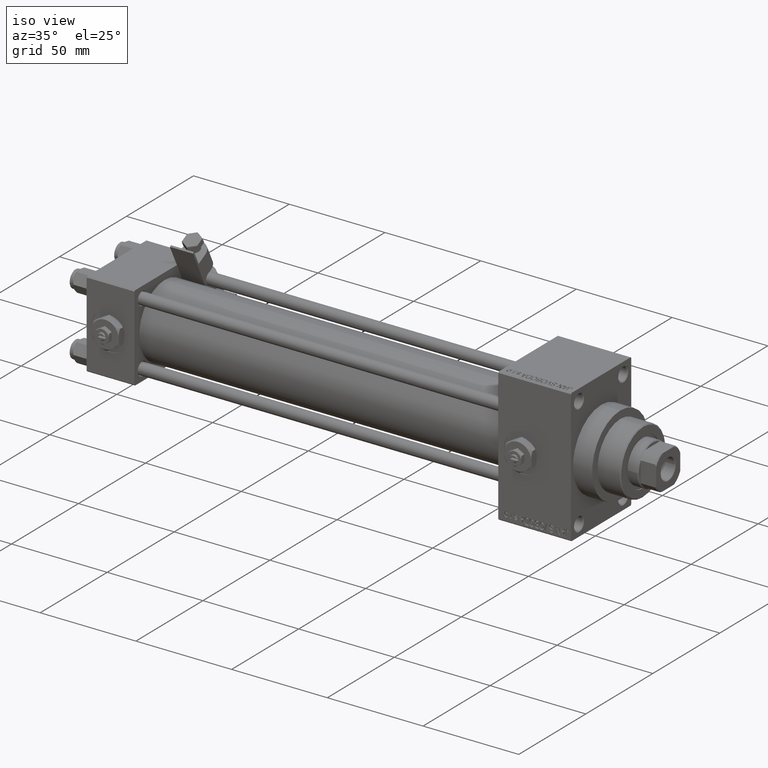
[diagram: clean part render]
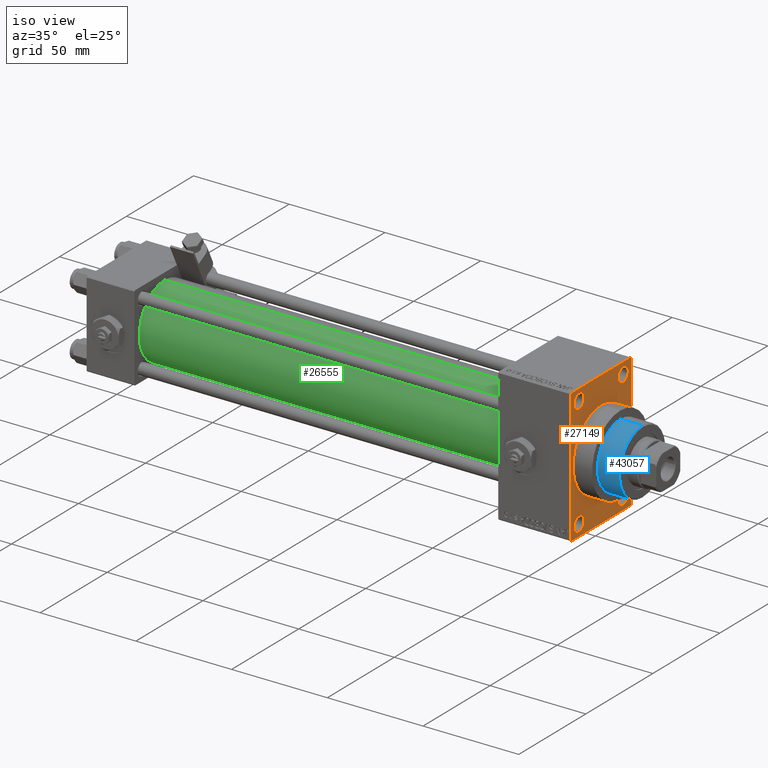
[diagram: same view with three faces highlighted in distinct colors, each labeled with its STEP entity id]
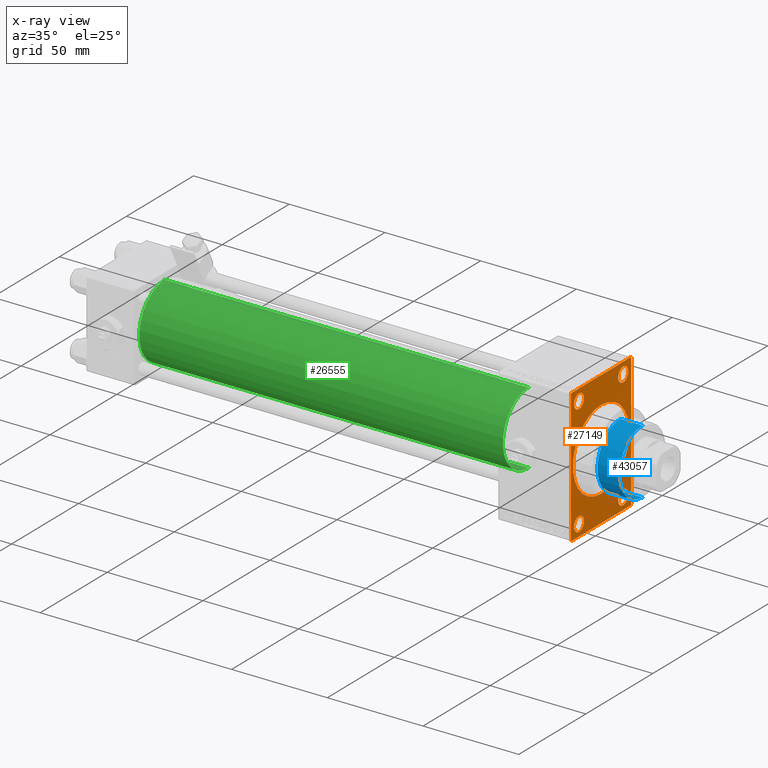
[diagram: x-ray of the same camera — body ghosted, the three highlighted faces saturated]
A machine part, iso view with three faces highlighted in distinct colors.
The next image is the same camera in x-ray (body ghosted, the three faces saturated) — at least one of them is partly hidden behind the body in this view.
Their STEP definitions:

[orange] entity #27149 — the highlighted planar face has unit normal (-1, 0, 0).
#645 = ORIENTED_EDGE ( 'NONE', *, *, #44953, .T. ) ;
#787 = VERTEX_POINT ( 'NONE', #22600 ) ;
#1042 = VERTEX_POINT ( 'NONE', #1603 ) ;
#1364 = AXIS2_PLACEMENT_3D ( 'NONE', #10021, #47788, #40171 ) ;
#1542 = CARTESIAN_POINT ( 'NONE',  ( 253.0000000000000000, 16.50000000000000000, 25.24999999999977973 ) ) ;
#1603 = CARTESIAN_POINT ( 'NONE',  ( 253.0000000000000000, -16.50000000000000000, 25.24999999999978684 ) ) ;
#1740 = VECTOR ( 'NONE', #18904, 1000.000000000000000 ) ;
#1948 = EDGE_LOOP ( 'NONE', ( #34390, #645 ) ) ;
#2162 = DIRECTION ( 'NONE',  ( -1.000000000000000000, -0.000000000000000000, -0.000000000000000000 ) ) ;
#2186 = CIRCLE ( 'NONE', #30500, 3.750000000000222045 ) ;
#2532 = DIRECTION ( 'NONE',  ( 0.000000000000000000, 0.7071067811865474617, -0.7071067811865474617 ) ) ;
#2940 = DIRECTION ( 'NONE',  ( 0.000000000000000000, 0.000000000000000000, -1.000000000000000000 ) ) ;
#3017 = ORIENTED_EDGE ( 'NONE', *, *, #25691, .T. ) ;
#3074 = DIRECTION ( 'NONE',  ( 1.000000000000000000, 0.000000000000000000, 0.000000000000000000 ) ) ;
#3253 = ORIENTED_EDGE ( 'NONE', *, *, #29309, .T. ) ;
#3453 = CARTESIAN_POINT ( 'NONE',  ( 253.0000000000000000, 22.49999999999999645, 35.00000000000000000 ) ) ;
#3502 = EDGE_LOOP ( 'NONE', ( #31619, #44229, #40541, #3017, #4941, #47282, #17095, #20751 ) ) ;
#3698 = VERTEX_POINT ( 'NONE', #41535 ) ;
#4941 = ORIENTED_EDGE ( 'NONE', *, *, #37837, .F. ) ;
#5272 = DIRECTION ( 'NONE',  ( 0.000000000000000000, 0.000000000000000000, 1.000000000000000000 ) ) ;
#5916 = CARTESIAN_POINT ( 'NONE',  ( 253.0000000000000000, 2.571758278209441661E-15, -21.00000000000000000 ) ) ;
#6010 = ORIENTED_EDGE ( 'NONE', *, *, #48205, .T. ) ;
#6021 = CARTESIAN_POINT ( 'NONE',  ( 253.0000000000000000, 16.50000000000000000, -28.99999999999999289 ) ) ;
#6066 = VERTEX_POINT ( 'NONE', #7639 ) ;
#6514 = CARTESIAN_POINT ( 'NONE',  ( 253.0000000000000000, 22.49999999999999645, 34.50000000000000000 ) ) ;
#7639 = CARTESIAN_POINT ( 'NONE',  ( 253.0000000000000000, -22.50000000000000355, 34.50000000000000000 ) ) ;
#8114 = EDGE_CURVE ( 'NONE', #32063, #48885, #41681, .T. ) ;
#8221 = ORIENTED_EDGE ( 'NONE', *, *, #14697, .F. ) ;
#8344 = ORIENTED_EDGE ( 'NONE', *, *, #12684, .T. ) ;
#9104 = DIRECTION ( 'NONE',  ( 0.000000000000000000, 0.000000000000000000, 1.000000000000000000 ) ) ;
#9502 = VECTOR ( 'NONE', #11646, 1000.000000000000000 ) ;
#9588 = LINE ( 'NONE', #10088, #25989 ) ;
#9602 = DIRECTION ( 'NONE',  ( -1.000000000000000000, -0.000000000000000000, -0.000000000000000000 ) ) ;
#9880 = DIRECTION ( 'NONE',  ( -1.000000000000000000, 0.000000000000000000, -0.000000000000000000 ) ) ;
#10021 = CARTESIAN_POINT ( 'NONE',  ( 253.0000000000000000, 16.50000000000000000, -28.99999999999999289 ) ) ;
#10088 = CARTESIAN_POINT ( 'NONE',  ( 253.0000000000000000, 22.49999999999999645, -34.50000000000000000 ) ) ;
#10323 = DIRECTION ( 'NONE',  ( -1.000000000000000000, -0.000000000000000000, -0.000000000000000000 ) ) ;
#10900 = EDGE_CURVE ( 'NONE', #32162, #42918, #43165, .T. ) ;
#11106 = AXIS2_PLACEMENT_3D ( 'NONE', #38206, #30840, #42516 ) ;
#11604 = DIRECTION ( 'NONE',  ( -1.000000000000000000, -0.000000000000000000, -0.000000000000000000 ) ) ;
#11646 = DIRECTION ( 'NONE',  ( 0.000000000000000000, -1.000000000000000000, 0.000000000000000000 ) ) ;
#11964 = CARTESIAN_POINT ( 'NONE',  ( 253.0000000000000000, 0.000000000000000000, 0.000000000000000000 ) ) ;
#12414 = CARTESIAN_POINT ( 'NONE',  ( 253.0000000000000000, -16.50000000000000000, -32.75000000000022027 ) ) ;
#12684 = EDGE_CURVE ( 'NONE', #3698, #27086, #23998, .T. ) ;
#12990 = CARTESIAN_POINT ( 'NONE',  ( 253.0000000000000000, -22.50000000000000355, -34.50000000000000000 ) ) ;
#12992 = DIRECTION ( 'NONE',  ( 0.000000000000000000, -0.7071067811865474617, 0.7071067811865474617 ) ) ;
#14697 = EDGE_CURVE ( 'NONE', #48885, #32063, #22436, .T. ) ;
#14987 = CARTESIAN_POINT ( 'NONE',  ( 253.0000000000000000, -16.50000000000000000, 32.75000000000022737 ) ) ;
#15688 = CARTESIAN_POINT ( 'NONE',  ( 253.0000000000000000, 0.000000000000000000, 21.00000000000000000 ) ) ;
#15898 = CARTESIAN_POINT ( 'NONE',  ( 253.0000000000000000, -16.50000000000000000, -28.99999999999999289 ) ) ;
#16164 = DIRECTION ( 'NONE',  ( -1.000000000000000000, -0.000000000000000000, -0.000000000000000000 ) ) ;
#16500 = VERTEX_POINT ( 'NONE', #12414 ) ;
#16832 = EDGE_CURVE ( 'NONE', #30996, #1042, #32950, .T. ) ;
#16850 = EDGE_CURVE ( 'NONE', #16500, #34419, #34576, .T. ) ;
#17095 = ORIENTED_EDGE ( 'NONE', *, *, #43804, .T. ) ;
#17359 = LINE ( 'NONE', #35878, #38124 ) ;
#18150 = LINE ( 'NONE', #25254, #34895 ) ;
#18904 = DIRECTION ( 'NONE',  ( 0.000000000000000000, -1.000000000000000000, 0.000000000000000000 ) ) ;
#19855 = VERTEX_POINT ( 'NONE', #1542 ) ;
#20394 = CIRCLE ( 'NONE', #45529, 3.750000000000222045 ) ;
#20751 = ORIENTED_EDGE ( 'NONE', *, *, #29058, .T. ) ;
#21252 = FACE_BOUND ( 'NONE', #36972, .T. ) ;
#21459 = DIRECTION ( 'NONE',  ( -0.000000000000000000, 0.7071067811865279218, 0.7071067811865671127 ) ) ;
#21772 = CARTESIAN_POINT ( 'NONE',  ( 253.0000000000000000, -22.00000000000000355, -35.00000000000000000 ) ) ;
#22075 = DIRECTION ( 'NONE',  ( 0.000000000000000000, 0.000000000000000000, -1.000000000000000000 ) ) ;
#22436 = CIRCLE ( 'NONE', #32193, 21.00000000000000000 ) ;
#22600 = CARTESIAN_POINT ( 'NONE',  ( 253.0000000000000000, -22.00000000000001776, 35.00000000000000000 ) ) ;
#22696 = LINE ( 'NONE', #3453, #1740 ) ;
#23203 = AXIS2_PLACEMENT_3D ( 'NONE', #15898, #11604, #42771 ) ;
#23736 = DIRECTION ( 'NONE',  ( 0.000000000000000000, 0.000000000000000000, 1.000000000000000000 ) ) ;
#23998 = CIRCLE ( 'NONE', #1364, 3.750000000000222045 ) ;
#24357 = CARTESIAN_POINT ( 'NONE',  ( 253.0000000000000000, -16.50000000000000000, -25.24999999999976907 ) ) ;
#24722 = EDGE_CURVE ( 'NONE', #19855, #49529, #42977, .T. ) ;
#25085 = LINE ( 'NONE', #34699, #39414 ) ;
#25254 = CARTESIAN_POINT ( 'NONE',  ( 253.0000000000000000, 22.49999999999999645, 35.00000000000000000 ) ) ;
#25676 = CARTESIAN_POINT ( 'NONE',  ( 253.0000000000000000, 21.99999999999999645, 35.00000000000000000 ) ) ;
#25691 = EDGE_CURVE ( 'NONE', #40723, #38119, #9588, .T. ) ;
#25939 = EDGE_CURVE ( 'NONE', #6066, #38615, #17359, .T. ) ;
#25989 = VECTOR ( 'NONE', #21459, 1000.000000000000000 ) ;
#27031 = AXIS2_PLACEMENT_3D ( 'NONE', #28829, #9602, #9104 ) ;
#27086 = VERTEX_POINT ( 'NONE', #29954 ) ;
#27149 = ADVANCED_FACE ( 'NONE', ( #48397, #39783, #21252, #36730, #48140, #28607 ), #28859, .F. ) ;
#27898 = DIRECTION ( 'NONE',  ( 0.000000000000000000, 0.000000000000000000, -1.000000000000000000 ) ) ;
#27984 = VECTOR ( 'NONE', #12992, 1000.000000000000114 ) ;
#28607 = FACE_OUTER_BOUND ( 'NONE', #3502, .T. ) ;
#28681 = CIRCLE ( 'NONE', #47309, 3.750000000000225597 ) ;
#28829 = CARTESIAN_POINT ( 'NONE',  ( 253.0000000000000000, -16.50000000000000000, 29.00000000000000711 ) ) ;
#28859 = PLANE ( 'NONE',  #45507 ) ;
#29007 = CARTESIAN_POINT ( 'NONE',  ( 253.0000000000000000, -16.50000000000000000, -28.99999999999999289 ) ) ;
#29058 = EDGE_CURVE ( 'NONE', #787, #6066, #25085, .T. ) ;
#29079 = EDGE_CURVE ( 'NONE', #40723, #42612, #30885, .T. ) ;
#29309 = EDGE_CURVE ( 'NONE', #27086, #3698, #2186, .T. ) ;
#29311 = CARTESIAN_POINT ( 'NONE',  ( 253.0000000000000000, 16.50000000000000000, 29.00000000000000355 ) ) ;
#29440 = CARTESIAN_POINT ( 'NONE',  ( 253.0000000000000000, 0.000000000000000000, 0.000000000000000000 ) ) ;
#29954 = CARTESIAN_POINT ( 'NONE',  ( 253.0000000000000000, 16.50000000000000000, -32.75000000000022027 ) ) ;
#30500 = AXIS2_PLACEMENT_3D ( 'NONE', #6021, #44299, #5272 ) ;
#30840 = DIRECTION ( 'NONE',  ( -1.000000000000000000, -0.000000000000000000, -0.000000000000000000 ) ) ;
#30885 = LINE ( 'NONE', #46109, #9502 ) ;
#30996 = VERTEX_POINT ( 'NONE', #14987 ) ;
#31619 = ORIENTED_EDGE ( 'NONE', *, *, #25939, .T. ) ;
#32063 = VERTEX_POINT ( 'NONE', #15688 ) ;
#32162 = VERTEX_POINT ( 'NONE', #6514 ) ;
#32176 = CARTESIAN_POINT ( 'NONE',  ( 253.0000000000000000, 0.000000000000000000, 0.000000000000000000 ) ) ;
#32193 = AXIS2_PLACEMENT_3D ( 'NONE', #11964, #40057, #27898 ) ;
#32645 = ORIENTED_EDGE ( 'NONE', *, *, #8114, .F. ) ;
#32950 = CIRCLE ( 'NONE', #11106, 3.750000000000222045 ) ;
#33867 = DIRECTION ( 'NONE',  ( 0.000000000000000000, 0.000000000000000000, 1.000000000000000000 ) ) ;
#34306 = EDGE_LOOP ( 'NONE', ( #6010, #48930 ) ) ;
#34390 = ORIENTED_EDGE ( 'NONE', *, *, #16850, .T. ) ;
#34419 = VERTEX_POINT ( 'NONE', #24357 ) ;
#34576 = CIRCLE ( 'NONE', #23203, 3.750000000000222045 ) ;
#34699 = CARTESIAN_POINT ( 'NONE',  ( 253.0000000000000000, -22.50000000000000355, 34.50000000000000000 ) ) ;
#34895 = VECTOR ( 'NONE', #2940, 1000.000000000000000 ) ;
#35659 = AXIS2_PLACEMENT_3D ( 'NONE', #29311, #10323, #33867 ) ;
#35878 = CARTESIAN_POINT ( 'NONE',  ( 253.0000000000000000, -22.50000000000000355, 35.00000000000000000 ) ) ;
#36038 = AXIS2_PLACEMENT_3D ( 'NONE', #29440, #3074, #22075 ) ;
#36411 = CARTESIAN_POINT ( 'NONE',  ( 253.0000000000000000, 16.50000000000000000, 32.75000000000022737 ) ) ;
#36730 = FACE_BOUND ( 'NONE', #43561, .T. ) ;
#36972 = EDGE_LOOP ( 'NONE', ( #3253, #8344 ) ) ;
#37837 = EDGE_CURVE ( 'NONE', #32162, #38119, #18150, .T. ) ;
#38119 = VERTEX_POINT ( 'NONE', #39416 ) ;
#38124 = VECTOR ( 'NONE', #39928, 1000.000000000000000 ) ;
#38206 = CARTESIAN_POINT ( 'NONE',  ( 253.0000000000000000, -16.50000000000000000, 29.00000000000000711 ) ) ;
#38615 = VERTEX_POINT ( 'NONE', #12990 ) ;
#39187 = ORIENTED_EDGE ( 'NONE', *, *, #24722, .T. ) ;
#39414 = VECTOR ( 'NONE', #41559, 1000.000000000000000 ) ;
#39416 = CARTESIAN_POINT ( 'NONE',  ( 253.0000000000000000, 22.49999999999999645, -34.50000000000000000 ) ) ;
#39783 = FACE_BOUND ( 'NONE', #1948, .T. ) ;
#39928 = DIRECTION ( 'NONE',  ( 0.000000000000000000, 0.000000000000000000, -1.000000000000000000 ) ) ;
#40057 = DIRECTION ( 'NONE',  ( 1.000000000000000000, 0.000000000000000000, 0.000000000000000000 ) ) ;
#40171 = DIRECTION ( 'NONE',  ( 0.000000000000000000, 0.000000000000000000, 1.000000000000000000 ) ) ;
#40541 = ORIENTED_EDGE ( 'NONE', *, *, #29079, .F. ) ;
#40723 = VERTEX_POINT ( 'NONE', #41962 ) ;
#41063 = LINE ( 'NONE', #21772, #48863 ) ;
#41535 = CARTESIAN_POINT ( 'NONE',  ( 253.0000000000000000, 16.50000000000000000, -25.24999999999976907 ) ) ;
#41559 = DIRECTION ( 'NONE',  ( -0.000000000000000000, -0.7071067811865279218, -0.7071067811865671127 ) ) ;
#41681 = CIRCLE ( 'NONE', #36038, 21.00000000000000000 ) ;
#41962 = CARTESIAN_POINT ( 'NONE',  ( 253.0000000000000000, 22.00000000000002132, -35.00000000000000000 ) ) ;
#42418 = CIRCLE ( 'NONE', #27031, 3.750000000000222045 ) ;
#42516 = DIRECTION ( 'NONE',  ( 0.000000000000000000, 0.000000000000000000, 1.000000000000000000 ) ) ;
#42612 = VERTEX_POINT ( 'NONE', #46336 ) ;
#42771 = DIRECTION ( 'NONE',  ( 0.000000000000000000, 0.000000000000000000, 1.000000000000000000 ) ) ;
#42918 = VERTEX_POINT ( 'NONE', #25676 ) ;
#42968 = ORIENTED_EDGE ( 'NONE', *, *, #49465, .T. ) ;
#42977 = CIRCLE ( 'NONE', #35659, 3.750000000000225597 ) ;
#43165 = LINE ( 'NONE', #47713, #27984 ) ;
#43561 = EDGE_LOOP ( 'NONE', ( #39187, #42968 ) ) ;
#43777 = CARTESIAN_POINT ( 'NONE',  ( 253.0000000000000000, 16.50000000000000000, 29.00000000000000355 ) ) ;
#43804 = EDGE_CURVE ( 'NONE', #42918, #787, #22696, .T. ) ;
#44229 = ORIENTED_EDGE ( 'NONE', *, *, #47075, .T. ) ;
#44299 = DIRECTION ( 'NONE',  ( -1.000000000000000000, -0.000000000000000000, -0.000000000000000000 ) ) ;
#44953 = EDGE_CURVE ( 'NONE', #34419, #16500, #20394, .T. ) ;
#45507 = AXIS2_PLACEMENT_3D ( 'NONE', #32176, #9880, #47894 ) ;
#45529 = AXIS2_PLACEMENT_3D ( 'NONE', #29007, #2162, #48294 ) ;
#46109 = CARTESIAN_POINT ( 'NONE',  ( 253.0000000000000000, 22.49999999999999645, -35.00000000000000000 ) ) ;
#46336 = CARTESIAN_POINT ( 'NONE',  ( 253.0000000000000000, -21.99999999999998934, -35.00000000000000000 ) ) ;
#47075 = EDGE_CURVE ( 'NONE', #38615, #42612, #41063, .T. ) ;
#47282 = ORIENTED_EDGE ( 'NONE', *, *, #10900, .T. ) ;
#47309 = AXIS2_PLACEMENT_3D ( 'NONE', #43777, #16164, #23736 ) ;
#47713 = CARTESIAN_POINT ( 'NONE',  ( 253.0000000000000000, 21.99999999999999645, 35.00000000000000000 ) ) ;
#47788 = DIRECTION ( 'NONE',  ( -1.000000000000000000, -0.000000000000000000, -0.000000000000000000 ) ) ;
#47894 = DIRECTION ( 'NONE',  ( -0.000000000000000000, 0.000000000000000000, 1.000000000000000000 ) ) ;
#48140 = FACE_BOUND ( 'NONE', #49362, .T. ) ;
#48205 = EDGE_CURVE ( 'NONE', #1042, #30996, #42418, .T. ) ;
#48294 = DIRECTION ( 'NONE',  ( 0.000000000000000000, 0.000000000000000000, 1.000000000000000000 ) ) ;
#48397 = FACE_BOUND ( 'NONE', #34306, .T. ) ;
#48863 = VECTOR ( 'NONE', #2532, 1000.000000000000114 ) ;
#48885 = VERTEX_POINT ( 'NONE', #5916 ) ;
#48930 = ORIENTED_EDGE ( 'NONE', *, *, #16832, .T. ) ;
#49362 = EDGE_LOOP ( 'NONE', ( #32645, #8221 ) ) ;
#49465 = EDGE_CURVE ( 'NONE', #49529, #19855, #28681, .T. ) ;
#49529 = VERTEX_POINT ( 'NONE', #36411 ) ;

[blue] entity #43057 — the highlighted cylindrical surface (partial cylindrical patch) has radius 17 mm, axis along (-1, 0, 0).
#1317 = CARTESIAN_POINT ( 'NONE',  ( 0.000000000000000000, 0.000000000000000000, 55.26000000000000512 ) ) ;
#2646 = CARTESIAN_POINT ( 'NONE',  ( -17.00000000000000000, 0.000000000000000000, 55.26000000000000512 ) ) ;
#3537 = CIRCLE ( 'NONE', #16497, 17.00000000000000000 ) ;
#3631 = DIRECTION ( 'NONE',  ( 1.000000000000000000, 0.000000000000000000, 0.000000000000000000 ) ) ;
#5076 = ORIENTED_EDGE ( 'NONE', *, *, #13583, .F. ) ;
#5123 = DIRECTION ( 'NONE',  ( -0.000000000000000000, -0.000000000000000000, -1.000000000000000000 ) ) ;
#5233 = EDGE_CURVE ( 'NONE', #38823, #19791, #3537, .T. ) ;
#6503 = CARTESIAN_POINT ( 'NONE',  ( 17.00000000000000000, 2.081899558550500280E-15, 43.25999999999999801 ) ) ;
#8949 = ORIENTED_EDGE ( 'NONE', *, *, #39168, .T. ) ;
#9435 = FACE_OUTER_BOUND ( 'NONE', #44177, .T. ) ;
#10559 = DIRECTION ( 'NONE',  ( 1.000000000000000000, 0.000000000000000000, 0.000000000000000000 ) ) ;
#11437 = VERTEX_POINT ( 'NONE', #49889 ) ;
#13583 = EDGE_CURVE ( 'NONE', #11437, #19791, #29751, .T. ) ;
#13912 = AXIS2_PLACEMENT_3D ( 'NONE', #1317, #5123, #40342 ) ;
#16497 = AXIS2_PLACEMENT_3D ( 'NONE', #41216, #40972, #10559 ) ;
#18702 = CIRCLE ( 'NONE', #37348, 17.00000000000000000 ) ;
#19791 = VERTEX_POINT ( 'NONE', #24094 ) ;
#22567 = LINE ( 'NONE', #37806, #22740 ) ;
#22740 = VECTOR ( 'NONE', #30183, 1000.000000000000000 ) ;
#22877 = CARTESIAN_POINT ( 'NONE',  ( 0.000000000000000000, 0.000000000000000000, 54.76000000000001222 ) ) ;
#24094 = CARTESIAN_POINT ( 'NONE',  ( -17.00000000000000000, 0.000000000000000000, 43.25999999999999801 ) ) ;
#24587 = ORIENTED_EDGE ( 'NONE', *, *, #39499, .T. ) ;
#26008 = CARTESIAN_POINT ( 'NONE',  ( 17.00000000000000000, 2.081899558550500280E-15, 54.76000000000001222 ) ) ;
#27923 = CYLINDRICAL_SURFACE ( 'NONE', #13912, 17.00000000000000000 ) ;
#29751 = LINE ( 'NONE', #2646, #47545 ) ;
#30183 = DIRECTION ( 'NONE',  ( -0.000000000000000000, -0.000000000000000000, -1.000000000000000000 ) ) ;
#30747 = DIRECTION ( 'NONE',  ( 0.000000000000000000, 0.000000000000000000, -1.000000000000000000 ) ) ;
#32819 = DIRECTION ( 'NONE',  ( -0.000000000000000000, -0.000000000000000000, -1.000000000000000000 ) ) ;
#37348 = AXIS2_PLACEMENT_3D ( 'NONE', #22877, #30747, #3631 ) ;
#37806 = CARTESIAN_POINT ( 'NONE',  ( 17.00000000000000000, 2.081899558550500280E-15, 55.26000000000000512 ) ) ;
#37884 = VERTEX_POINT ( 'NONE', #26008 ) ;
#38823 = VERTEX_POINT ( 'NONE', #6503 ) ;
#39168 = EDGE_CURVE ( 'NONE', #11437, #37884, #18702, .T. ) ;
#39499 = EDGE_CURVE ( 'NONE', #37884, #38823, #22567, .T. ) ;
#40342 = DIRECTION ( 'NONE',  ( -1.000000000000000000, 0.000000000000000000, 0.000000000000000000 ) ) ;
#40608 = ORIENTED_EDGE ( 'NONE', *, *, #5233, .T. ) ;
#40972 = DIRECTION ( 'NONE',  ( 0.000000000000000000, 0.000000000000000000, 1.000000000000000000 ) ) ;
#41216 = CARTESIAN_POINT ( 'NONE',  ( 0.000000000000000000, 0.000000000000000000, 43.25999999999999801 ) ) ;
#43057 = ADVANCED_FACE ( 'NONE', ( #9435 ), #27923, .T. ) ;
#44177 = EDGE_LOOP ( 'NONE', ( #8949, #24587, #40608, #5076 ) ) ;
#47545 = VECTOR ( 'NONE', #32819, 1000.000000000000000 ) ;
#49889 = CARTESIAN_POINT ( 'NONE',  ( -17.00000000000000000, 0.000000000000000000, 54.76000000000001222 ) ) ;

[green] entity #26555 — the highlighted cylindrical surface (partial cylindrical patch) has radius 19 mm, axis along (-1, -0, -0).
#2656 = CARTESIAN_POINT ( 'NONE',  ( 215.0000000000000000, -2.602085213965210642E-15, 19.00000000000000000 ) ) ;
#4088 = DIRECTION ( 'NONE',  ( 1.000000000000000000, 0.000000000000000000, 0.000000000000000000 ) ) ;
#6752 = CARTESIAN_POINT ( 'NONE',  ( 215.0000000000000000, -2.602085213965210642E-15, 19.00000000000000000 ) ) ;
#7550 = CIRCLE ( 'NONE', #35856, 19.00000000000000000 ) ;
#9309 = EDGE_CURVE ( 'NONE', #37851, #16691, #32809, .T. ) ;
#10606 = CARTESIAN_POINT ( 'NONE',  ( 215.0000000000000000, -2.752562955852396712E-16, -19.00000000000000000 ) ) ;
#11462 = CARTESIAN_POINT ( 'NONE',  ( 215.0000000000000000, -2.602085213965210642E-15, 0.000000000000000000 ) ) ;
#12913 = CARTESIAN_POINT ( 'NONE',  ( 215.0000000000000000, -2.752562955852396712E-16, -19.00000000000000000 ) ) ;
#12946 = CARTESIAN_POINT ( 'NONE',  ( 24.99999999999999289, -2.602085213965210642E-15, 19.00000000000000000 ) ) ;
#13465 = CARTESIAN_POINT ( 'NONE',  ( 24.99999999999999289, -2.602085213965210642E-15, 0.000000000000000000 ) ) ;
#15141 = CARTESIAN_POINT ( 'NONE',  ( 215.0000000000000000, -2.602085213965210642E-15, 0.000000000000000000 ) ) ;
#15941 = ORIENTED_EDGE ( 'NONE', *, *, #9309, .F. ) ;
#16691 = VERTEX_POINT ( 'NONE', #10606 ) ;
#17254 = DIRECTION ( 'NONE',  ( 0.000000000000000000, 0.000000000000000000, 1.000000000000000000 ) ) ;
#18607 = DIRECTION ( 'NONE',  ( -1.000000000000000000, -0.000000000000000000, -0.000000000000000000 ) ) ;
#18900 = EDGE_LOOP ( 'NONE', ( #30035, #15941, #25761, #38380 ) ) ;
#20634 = AXIS2_PLACEMENT_3D ( 'NONE', #11462, #4088, #35018 ) ;
#22965 = DIRECTION ( 'NONE',  ( 0.000000000000000000, 0.000000000000000000, 1.000000000000000000 ) ) ;
#23373 = VECTOR ( 'NONE', #25044, 1000.000000000000000 ) ;
#25044 = DIRECTION ( 'NONE',  ( -1.000000000000000000, -0.000000000000000000, -0.000000000000000000 ) ) ;
#25761 = ORIENTED_EDGE ( 'NONE', *, *, #29700, .T. ) ;
#26032 = CYLINDRICAL_SURFACE ( 'NONE', #47891, 19.00000000000000000 ) ;
#26555 = ADVANCED_FACE ( 'NONE', ( #33640 ), #26032, .T. ) ;
#29700 = EDGE_CURVE ( 'NONE', #37851, #31878, #34318, .T. ) ;
#30035 = ORIENTED_EDGE ( 'NONE', *, *, #33786, .F. ) ;
#30079 = DIRECTION ( 'NONE',  ( -1.000000000000000000, -0.000000000000000000, -0.000000000000000000 ) ) ;
#31878 = VERTEX_POINT ( 'NONE', #12946 ) ;
#32809 = CIRCLE ( 'NONE', #20634, 19.00000000000000000 ) ;
#33640 = FACE_OUTER_BOUND ( 'NONE', #18900, .T. ) ;
#33786 = EDGE_CURVE ( 'NONE', #16691, #42171, #39512, .T. ) ;
#34318 = LINE ( 'NONE', #2656, #40249 ) ;
#35018 = DIRECTION ( 'NONE',  ( 0.000000000000000000, 0.000000000000000000, -1.000000000000000000 ) ) ;
#35537 = CARTESIAN_POINT ( 'NONE',  ( 24.99999999999999289, -2.752562955852396712E-16, -19.00000000000000000 ) ) ;
#35856 = AXIS2_PLACEMENT_3D ( 'NONE', #13465, #37270, #17254 ) ;
#37270 = DIRECTION ( 'NONE',  ( 1.000000000000000000, -0.000000000000000000, 0.000000000000000000 ) ) ;
#37851 = VERTEX_POINT ( 'NONE', #6752 ) ;
#38380 = ORIENTED_EDGE ( 'NONE', *, *, #46376, .T. ) ;
#39512 = LINE ( 'NONE', #12913, #23373 ) ;
#40249 = VECTOR ( 'NONE', #18607, 1000.000000000000000 ) ;
#42171 = VERTEX_POINT ( 'NONE', #35537 ) ;
#46376 = EDGE_CURVE ( 'NONE', #31878, #42171, #7550, .T. ) ;
#47891 = AXIS2_PLACEMENT_3D ( 'NONE', #15141, #30079, #22965 ) ;